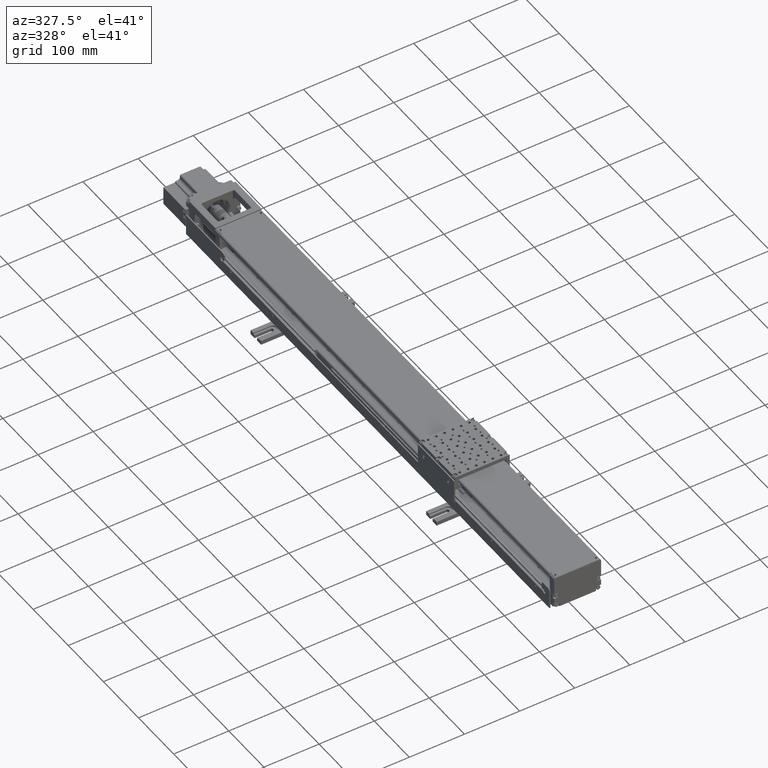
[diagram: clean part render]
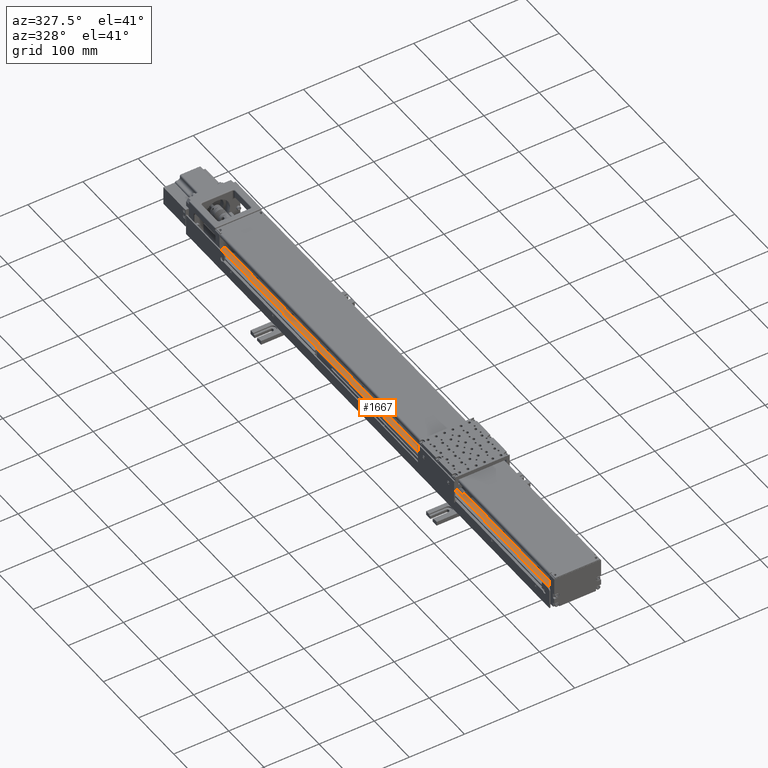
[diagram: same view with one face highlighted and labeled with its STEP entity id]
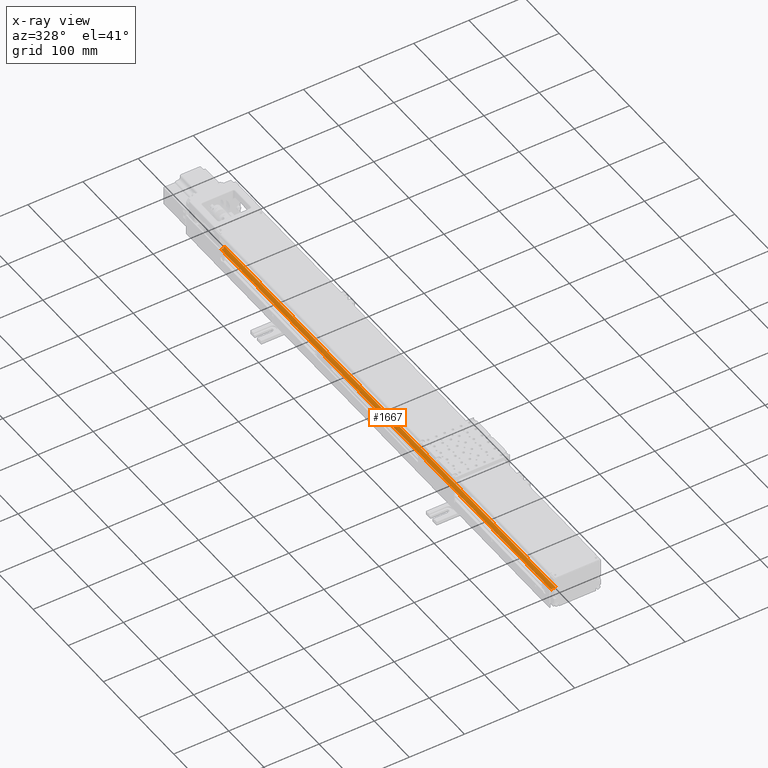
[diagram: x-ray of the same camera — body ghosted, the highlighted face saturated]
A machine part, auxiliary view. The second image highlights one B-rep face of the part: STEP entity #1667.
The next image is the same camera in x-ray: the body ghosted, the highlighted face saturated — about 0% of this face is hidden behind the body in this view.
In plain terms, the highlighted planar face has unit normal (-0.2588, 0, 0.9659).
Its self-contained STEP definition (entity closure, byte-faithful):
#250=FACE_BOUND('',#7037,.T.);
#1667=ADVANCED_FACE('',(#4234,#250),#40536,.T.);
#4234=FACE_OUTER_BOUND('',#7036,.T.);
#7036=EDGE_LOOP('',(#15335,#15336,#15337,#15338));
#7037=EDGE_LOOP('',(#15339,#15340));
#15335=ORIENTED_EDGE('',*,*,#25141,.T.);
#15336=ORIENTED_EDGE('',*,*,#25139,.F.);
#15337=ORIENTED_EDGE('',*,*,#25142,.T.);
#15338=ORIENTED_EDGE('',*,*,#25143,.T.);
#15339=ORIENTED_EDGE('',*,*,#25144,.T.);
#15340=ORIENTED_EDGE('',*,*,#25144,.F.);
#25139=EDGE_CURVE('',#37669,#37670,#33354,.T.);
#25141=EDGE_CURVE('',#37671,#37670,#30838,.T.);
#25142=EDGE_CURVE('',#37669,#37672,#30839,.T.);
#25143=EDGE_CURVE('',#37672,#37671,#30840,.T.);
#25144=EDGE_CURVE('',#37673,#37674,#30841,.T.);
#30838=B_SPLINE_CURVE_WITH_KNOTS('',1,(#98572,#98573),.UNSPECIFIED.,.F.,
 .F.,(2,2),(-7.81266732508543,3.7561953547538E-11),.UNSPECIFIED.);
#30839=B_SPLINE_CURVE_WITH_KNOTS('',1,(#98574,#98575),.UNSPECIFIED.,.F.,
 .F.,(2,2),(-3.75615323918103E-11,7.81266732508543),.UNSPECIFIED.);
#30840=B_SPLINE_CURVE_WITH_KNOTS('',1,(#98576,#98577),.UNSPECIFIED.,.F.,
 .F.,(2,2),(0.,940.),.UNSPECIFIED.);
#30841=B_SPLINE_CURVE_WITH_KNOTS('',1,(#98578,#98579),.UNSPECIFIED.,.F.,
 .F.,(2,2),(-23.0846495740552,-12.9246495740552),.UNSPECIFIED.);
#33354=(
BOUNDED_CURVE()
B_SPLINE_CURVE(1,(#98567,#98568),.UNSPECIFIED.,.F.,.F.)
B_SPLINE_CURVE_WITH_KNOTS((2,2),(-313.333333354221,0.),.UNSPECIFIED.)
CURVE()
GEOMETRIC_REPRESENTATION_ITEM()
RATIONAL_B_SPLINE_CURVE((1.,1.))
REPRESENTATION_ITEM('')
);
#37669=VERTEX_POINT('',#71164);
#37670=VERTEX_POINT('',#71165);
#37671=VERTEX_POINT('',#71166);
#37672=VERTEX_POINT('',#71167);
#37673=VERTEX_POINT('',#71168);
#37674=VERTEX_POINT('',#71169);
#40536=PLANE('',#43155);
#43155=AXIS2_PLACEMENT_3D('',#65425,#45076,$);
#45076=DIRECTION('',(-0.258819045104796,0.,0.965925826288459));
#65425=CARTESIAN_POINT('',(-39.7774230673626,-538.506304171534,35.9776743610124));
#71164=CARTESIAN_POINT('',(-39.7764571415287,-538.505304171534,35.9779331800292));
#71165=CARTESIAN_POINT('',(-39.7764571415287,401.494695828466,35.9779331800292));
#71166=CARTESIAN_POINT('',(-32.23,401.494695828466,38.0000002768673));
#71167=CARTESIAN_POINT('',(-32.23,-538.505304171534,38.0000002768673));
#71168=CARTESIAN_POINT('',(-35.6299627856306,-178.412312690431,37.0889829941419));
#71169=CARTESIAN_POINT('',(-35.6299627856306,-280.01231269043,37.0889829941419));
#98567=CARTESIAN_POINT('',(-39.7764571415287,-538.505304171534,35.9779331800292));
#98568=CARTESIAN_POINT('',(-39.7764571415287,401.494695828466,35.9779331800292));
#98572=CARTESIAN_POINT('',(-32.23,401.494695828466,38.0000002768673));
#98573=CARTESIAN_POINT('',(-39.7764571415287,401.494695828466,35.9779331800292));
#98574=CARTESIAN_POINT('',(-39.7764571415287,-538.505304171534,35.9779331800292));
#98575=CARTESIAN_POINT('',(-32.23,-538.505304171534,38.0000002768673));
#98576=CARTESIAN_POINT('',(-32.23,-538.505304171534,38.0000002768673));
#98577=CARTESIAN_POINT('',(-32.23,401.494695828466,38.0000002768673));
#98578=CARTESIAN_POINT('',(-35.6299627856306,-178.412312690431,37.0889829941419));
#98579=CARTESIAN_POINT('',(-35.6299627856306,-280.01231269043,37.0889829941419));